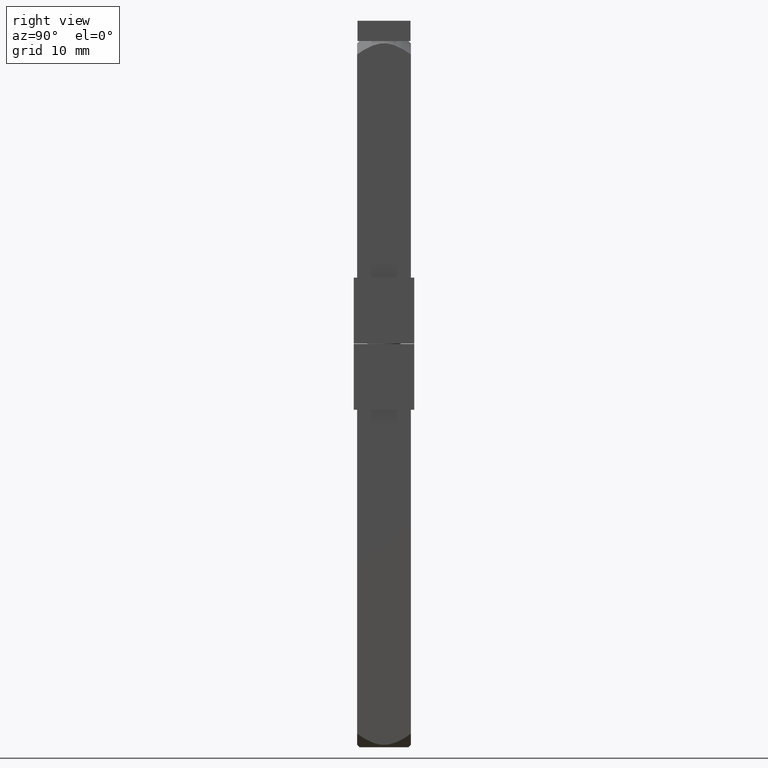
[diagram: clean part render]
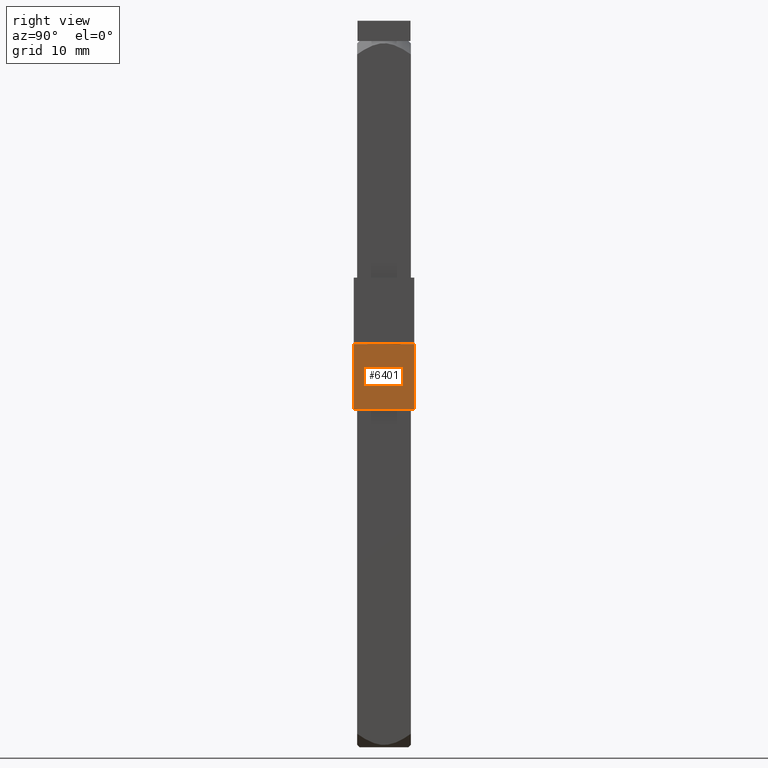
[diagram: same view with one face highlighted and labeled with its STEP entity id]
A machine part, right view. The second image highlights one B-rep face of the part: STEP entity #6401.
In plain terms, the highlighted planar face has unit normal (1, 0, 0).
Its self-contained STEP definition (entity closure, byte-faithful):
#1006 = EDGE_CURVE ( 'NONE', #5560, #7507, #9863, .T. ) ;
#1488 = CARTESIAN_POINT ( 'NONE',  ( 4.499999999999999100, 4.500000000000000900, 0.0000000000000000000 ) ) ;
#1780 = ORIENTED_EDGE ( 'NONE', *, *, #7108, .F. ) ;
#1804 = CARTESIAN_POINT ( 'NONE',  ( 4.499999999999999100, 4.500000000000000900, -9.800000000000002500 ) ) ;
#1873 = CARTESIAN_POINT ( 'NONE',  ( 4.499999999999999100, 4.500000000000000900, 0.0000000000000000000 ) ) ;
#1939 = ORIENTED_EDGE ( 'NONE', *, *, #5499, .T. ) ;
#1948 = ORIENTED_EDGE ( 'NONE', *, *, #4945, .F. ) ;
#2310 = CARTESIAN_POINT ( 'NONE',  ( 4.499999999999999100, 4.500000000000000900, -9.800000000000002500 ) ) ;
#2813 = LINE ( 'NONE', #7715, #7909 ) ;
#2874 = VECTOR ( 'NONE', #7546, 1000.000000000000000 ) ;
#3598 = FACE_OUTER_BOUND ( 'NONE', #5280, .T. ) ;
#3723 = DIRECTION ( 'NONE',  ( 1.000000000000000000, 1.927470528863119000E-016, -0.0000000000000000000 ) ) ;
#3760 = VECTOR ( 'NONE', #3860, 1000.000000000000000 ) ;
#3860 = DIRECTION ( 'NONE',  ( 0.0000000000000000000, 0.0000000000000000000, 1.000000000000000000 ) ) ;
#4496 = DIRECTION ( 'NONE',  ( -1.927470528863119000E-016, 1.000000000000000000, 0.0000000000000000000 ) ) ;
#4656 = PLANE ( 'NONE',  #7025 ) ;
#4907 = VERTEX_POINT ( 'NONE', #7148 ) ;
#4945 = EDGE_CURVE ( 'NONE', #5560, #4907, #9962, .T. ) ;
#4950 = CARTESIAN_POINT ( 'NONE',  ( 4.500000000000000900, -4.500000000000000000, -9.800000000000002500 ) ) ;
#5280 = EDGE_LOOP ( 'NONE', ( #1780, #1948, #8793, #1939 ) ) ;
#5499 = EDGE_CURVE ( 'NONE', #7507, #8091, #2813, .T. ) ;
#5560 = VERTEX_POINT ( 'NONE', #4950 ) ;
#6401 = ADVANCED_FACE ( 'NONE', ( #3598 ), #4656, .T. ) ;
#6487 = DIRECTION ( 'NONE',  ( -1.927470528863119000E-016, 1.000000000000000000, -0.0000000000000000000 ) ) ;
#7025 = AXIS2_PLACEMENT_3D ( 'NONE', #9818, #3723, #4496 ) ;
#7108 = EDGE_CURVE ( 'NONE', #4907, #8091, #11151, .T. ) ;
#7148 = CARTESIAN_POINT ( 'NONE',  ( 4.500000000000000900, -4.500000000000000000, 0.0000000000000000000 ) ) ;
#7261 = CARTESIAN_POINT ( 'NONE',  ( 4.500000000000000900, -4.500000000000000000, -9.800000000000002500 ) ) ;
#7507 = VERTEX_POINT ( 'NONE', #1804 ) ;
#7546 = DIRECTION ( 'NONE',  ( -1.927470528863119000E-016, 1.000000000000000000, -0.0000000000000000000 ) ) ;
#7715 = CARTESIAN_POINT ( 'NONE',  ( 4.499999999999999100, 4.500000000000000900, -9.800000000000002500 ) ) ;
#7909 = VECTOR ( 'NONE', #9805, 1000.000000000000000 ) ;
#8091 = VERTEX_POINT ( 'NONE', #1488 ) ;
#8793 = ORIENTED_EDGE ( 'NONE', *, *, #1006, .T. ) ;
#9782 = VECTOR ( 'NONE', #6487, 1000.000000000000000 ) ;
#9805 = DIRECTION ( 'NONE',  ( 0.0000000000000000000, 0.0000000000000000000, 1.000000000000000000 ) ) ;
#9818 = CARTESIAN_POINT ( 'NONE',  ( 4.499999999999999100, 4.500000000000000900, -9.800000000000002500 ) ) ;
#9863 = LINE ( 'NONE', #2310, #2874 ) ;
#9962 = LINE ( 'NONE', #7261, #3760 ) ;
#11151 = LINE ( 'NONE', #1873, #9782 ) ;